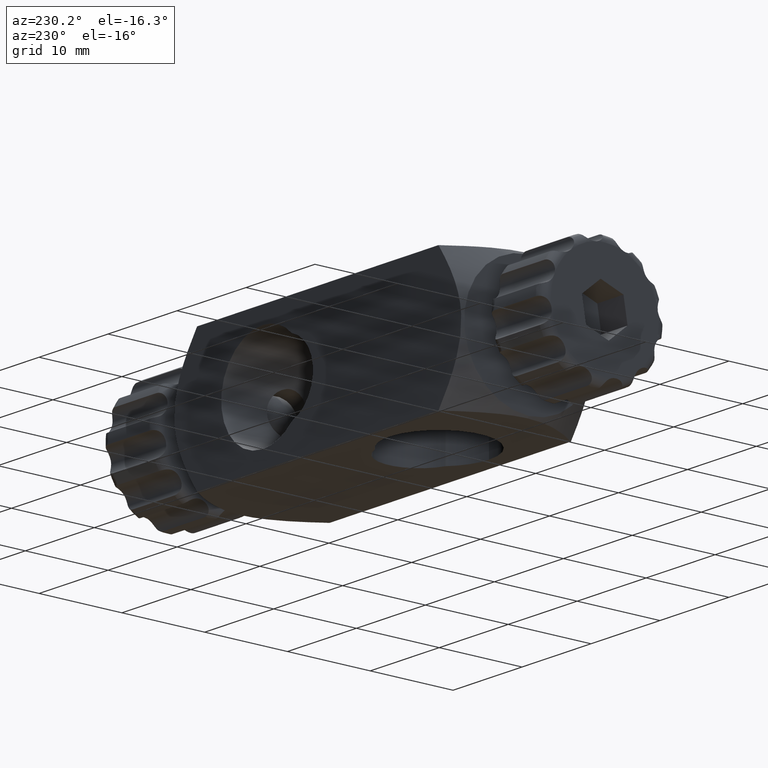
[diagram: clean part render]
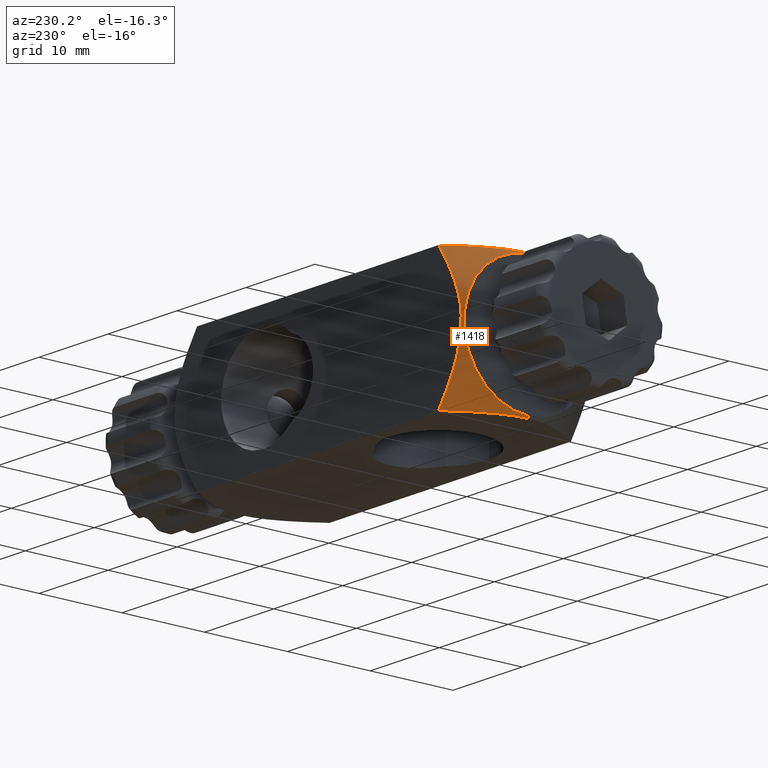
[diagram: same view with one face highlighted and labeled with its STEP entity id]
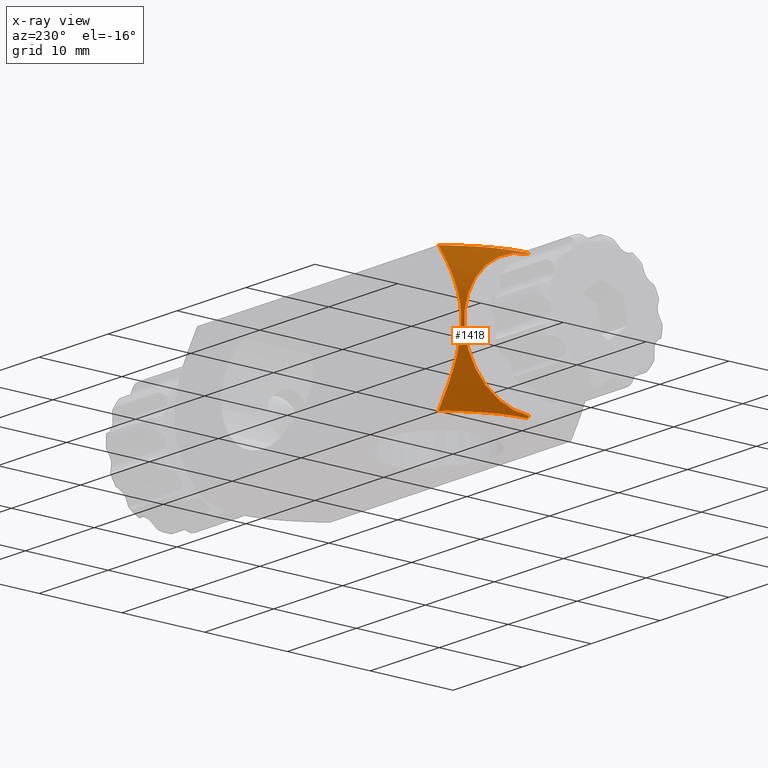
[diagram: x-ray of the same camera — body ghosted, the highlighted face saturated]
A machine part, auxiliary view. The second image highlights one B-rep face of the part: STEP entity #1418.
The next image is the same camera in x-ray: the body ghosted, the highlighted face saturated — about 0% of this face is hidden behind the body in this view.
In plain terms, the highlighted conical surface has half-angle 45 deg.
Its self-contained STEP definition (entity closure, byte-faithful):
#2 = CARTESIAN_POINT ( 'NONE',  ( -17.50000000000000000, 8.000000000000000000, -8.000000000000005329 ) ) ;
#175 = EDGE_CURVE ( 'NONE', #5871, #5452, #5161, .T. ) ;
#220 = CARTESIAN_POINT ( 'NONE',  ( -17.50000000000000000, 0.000000000000000000, -11.31370849898476294 ) ) ;
#389 = CARTESIAN_POINT ( 'NONE',  ( -21.00000000000000355, 1.172502379265107817E-15, 7.813708498984763828 ) ) ;
#416 = CARTESIAN_POINT ( 'NONE',  ( -17.92229514064221618, 8.000000000000001776, -7.402784484779539653 ) ) ;
#426 = CONICAL_SURFACE ( 'NONE', #1959, 11.31370849898476294, 0.7853981633974479459 ) ;
#475 = CARTESIAN_POINT ( 'NONE',  ( -20.42562860089000054, 7.999999999999998224, 2.544972745423847105 ) ) ;
#690 = CARTESIAN_POINT ( 'NONE',  ( -19.90721175397872500, 8.000000000000001776, 3.925766671444819611 ) ) ;
#778 = EDGE_CURVE ( 'NONE', #5512, #2603, #5330, .T. ) ;
#802 = CARTESIAN_POINT ( 'NONE',  ( -20.05440168618216745, 3.581629824737212697, -8.000000000000001776 ) ) ;
#847 = CARTESIAN_POINT ( 'NONE',  ( -19.09602088434859368, 8.000000000000001776, -5.538997386591465677 ) ) ;
#877 = CARTESIAN_POINT ( 'NONE',  ( -20.78897169824392677, 8.000000000000000000, -0.7250275231878091642 ) ) ;
#963 = CARTESIAN_POINT ( 'NONE',  ( -20.31220751485102838, 8.000000000000000000, 2.894467072397327367 ) ) ;
#1030 = CARTESIAN_POINT ( 'NONE',  ( -20.81370849898476649, 9.797174314798570497E-16, 8.000000000000000000 ) ) ;
#1147 = CARTESIAN_POINT ( 'NONE',  ( -18.32578179175611766, 6.799884536330018214, 8.000000000000001776 ) ) ;
#1180 = CARTESIAN_POINT ( 'NONE',  ( -20.05300170012582228, 8.000000000000000000, 3.585025002080002743 ) ) ;
#1252 = DIRECTION ( 'NONE',  ( 0.000000000000000000, 0.000000000000000000, -1.000000000000000000 ) ) ;
#1266 = CARTESIAN_POINT ( 'NONE',  ( -19.44030328246060435, 4.919881602706470680, -8.000000000000000000 ) ) ;
#1287 = CARTESIAN_POINT ( 'NONE',  ( -17.50000000000000000, 0.000000000000000000, 0.000000000000000000 ) ) ;
#1290 = CARTESIAN_POINT ( 'NONE',  ( -20.78791525579226018, 0.7382374763344536905, -8.000000000000001776 ) ) ;
#1293 = ORIENTED_EDGE ( 'NONE', *, *, #5323, .T. ) ;
#1383 = B_SPLINE_CURVE_WITH_KNOTS ( 'NONE', 3,
 ( #1030, #3374, #2864, #4250, #3870, #5288, #1590, #1556, #3785, #2011, #2503, #1147, #2983, #3400 ),
 .UNSPECIFIED., .F., .F.,
 ( 4, 2, 2, 2, 2, 2, 4 ),
 ( 0.01783099739773806938, 0.01892789397416532252, 0.02002479055059257912, 0.02112168712701983225, 0.02221858370344708539, 0.02441237685630159859, 0.02660617000915610833 ),
 .UNSPECIFIED. ) ;
#1400 = CARTESIAN_POINT ( 'NONE',  ( -20.81370849898476649, 9.797174314798570497E-16, 8.000000000000000000 ) ) ;
#1415 = CARTESIAN_POINT ( 'NONE',  ( -20.81342041344699823, 7.999999999999998224, 0.3728303006373130946 ) ) ;
#1418 = ADVANCED_FACE ( 'NONE', ( #5486 ), #426, .T. ) ;
#1434 = VERTEX_POINT ( 'NONE', #2425 ) ;
#1474 = VECTOR ( 'NONE', #2142, 999.9999999999998863 ) ;
#1556 = CARTESIAN_POINT ( 'NONE',  ( -20.05440168618099861, 3.581629824740159229, 8.000000000000001776 ) ) ;
#1590 = CARTESIAN_POINT ( 'NONE',  ( -20.31356114242262834, 2.890522693892557449, 8.000000000000000000 ) ) ;
#1601 = CIRCLE ( 'NONE', #4973, 7.813708498984763828 ) ;
#1654 = CARTESIAN_POINT ( 'NONE',  ( -19.08432518912336917, 7.999999999999998224, 5.558985842700168156 ) ) ;
#1697 = LINE ( 'NONE', #220, #5674 ) ;
#1711 = CARTESIAN_POINT ( 'NONE',  ( -18.32578179175527922, 6.799884536331319396, -8.000000000000000000 ) ) ;
#1784 = ORIENTED_EDGE ( 'NONE', *, *, #778, .T. ) ;
#1959 = AXIS2_PLACEMENT_3D ( 'NONE', #1287, #4055, #5901 ) ;
#1965 = ORIENTED_EDGE ( 'NONE', *, *, #175, .T. ) ;
#2011 = CARTESIAN_POINT ( 'NONE',  ( -19.44030328246087436, 4.919881602705785895, 8.000000000000000000 ) ) ;
#2142 = DIRECTION ( 'NONE',  ( 0.7071067811865479058, 8.659560562354930393E-17, 0.7071067811865472397 ) ) ;
#2224 = CARTESIAN_POINT ( 'NONE',  ( -19.45350763172081798, 8.000000000000000000, -4.894535881156409474 ) ) ;
#2319 = B_SPLINE_CURVE_WITH_KNOTS ( 'NONE', 3,
 ( #3584, #5429, #2987, #1654, #4824, #690, #1180, #963, #475, #5104, #4062, #4609, #1415, #3253, #877, #4193, #4160, #4971, #3642, #2224, #847, #2800, #416, #2 ),
 .UNSPECIFIED., .F., .F.,
 ( 4, 2, 2, 2, 2, 2, 2, 2, 2, 2, 2, 4 ),
 ( 0.03399603221189895219, 0.03618436325636750078, 0.03837269430083604937, 0.03946685982307032714, 0.04056102534530460491, 0.04165519086753887573, 0.04274935638977315350, 0.04384352191200742432, 0.04493768743424170209, 0.04712601847871025762, 0.04931434952317880621, 0.05150268056764735480 ),
 .UNSPECIFIED. ) ;
#2425 = CARTESIAN_POINT ( 'NONE',  ( -17.50000000000000355, 8.000000000000000000, 8.000000000000000000 ) ) ;
#2503 = CARTESIAN_POINT ( 'NONE',  ( -19.08536439680609220, 5.557202719139791469, 7.999999999999998224 ) ) ;
#2603 = VERTEX_POINT ( 'NONE', #1400 ) ;
#2645 = CARTESIAN_POINT ( 'NONE',  ( -20.31356114242296229, 2.890522693891473871, -8.000000000000001776 ) ) ;
#2800 = CARTESIAN_POINT ( 'NONE',  ( -18.32977993607270051, 8.000000000000000000, -6.794100204240243635 ) ) ;
#2864 = CARTESIAN_POINT ( 'NONE',  ( -20.78791525579183741, 0.7382374763385345373, 8.000000000000000000 ) ) ;
#2983 = CARTESIAN_POINT ( 'NONE',  ( -17.92073733177074857, 7.404987559213141779, 7.999999999999998224 ) ) ;
#2987 = CARTESIAN_POINT ( 'NONE',  ( -18.32520749897511436, 8.000000000000000000, 6.800740932893618584 ) ) ;
#3107 = CARTESIAN_POINT ( 'NONE',  ( -17.50000000000000000, 1.385529689976789652E-15, 11.31370849898476294 ) ) ;
#3253 = CARTESIAN_POINT ( 'NONE',  ( -20.81399172713669898, 8.000000000000000000, -0.3603628882989013960 ) ) ;
#3286 = EDGE_CURVE ( 'NONE', #2603, #1434, #1383, .T. ) ;
#3374 = CARTESIAN_POINT ( 'NONE',  ( -20.81370849898477360, 0.3668345160614235323, 8.000000000000000000 ) ) ;
#3400 = CARTESIAN_POINT ( 'NONE',  ( -17.50000000000000355, 8.000000000000000000, 8.000000000000000000 ) ) ;
#3450 = DIRECTION ( 'NONE',  ( 1.000000000000000000, -0.000000000000000000, -0.000000000000000000 ) ) ;
#3579 = CARTESIAN_POINT ( 'NONE',  ( -20.61402319011298445, 1.830865816188185002, -8.000000000000000000 ) ) ;
#3584 = CARTESIAN_POINT ( 'NONE',  ( -17.50000000000000355, 8.000000000000000000, 8.000000000000000000 ) ) ;
#3628 = EDGE_CURVE ( 'NONE', #1434, #5871, #2319, .T. ) ;
#3642 = CARTESIAN_POINT ( 'NONE',  ( -20.07322756702663824, 7.999999999999998224, -3.569191524466333476 ) ) ;
#3785 = CARTESIAN_POINT ( 'NONE',  ( -19.90858681300050748, 3.922667415172809591, 8.000000000000000000 ) ) ;
#3870 = CARTESIAN_POINT ( 'NONE',  ( -20.61402319011282458, 1.830865816188892214, 8.000000000000000000 ) ) ;
#3890 = CARTESIAN_POINT ( 'NONE',  ( -21.00000000000000355, 0.000000000000000000, -7.813708498984763828 ) ) ;
#3925 = CARTESIAN_POINT ( 'NONE',  ( -21.00000000000000355, 0.000000000000000000, 0.000000000000000000 ) ) ;
#4031 = CARTESIAN_POINT ( 'NONE',  ( -17.50000000000000000, 8.000000000000000000, -8.000000000000005329 ) ) ;
#4055 = DIRECTION ( 'NONE',  ( 1.000000000000000000, -0.000000000000000000, -0.000000000000000000 ) ) ;
#4062 = CARTESIAN_POINT ( 'NONE',  ( -20.68678732647625296, 8.000000000000001776, 1.475883045133412175 ) ) ;
#4160 = CARTESIAN_POINT ( 'NONE',  ( -20.61811455882615363, 7.999999999999998224, -1.813016830848965588 ) ) ;
#4193 = CARTESIAN_POINT ( 'NONE',  ( -20.69119034948052871, 7.999999999999996447, -1.450711989762716092 ) ) ;
#4250 = CARTESIAN_POINT ( 'NONE',  ( -20.68773215841694935, 1.470757925852254289, 8.000000000000001776 ) ) ;
#4392 = EDGE_LOOP ( 'NONE', ( #1293, #1784, #4685, #5214, #1965, #4640 ) ) ;
#4603 = CARTESIAN_POINT ( 'NONE',  ( -20.81370849898476649, -7.838516384728583804E-24, -8.000000000000001776 ) ) ;
#4609 = CARTESIAN_POINT ( 'NONE',  ( -20.78736702255115532, 8.000000000000000000, 0.7440030343107328914 ) ) ;
#4640 = ORIENTED_EDGE ( 'NONE', *, *, #5375, .F. ) ;
#4685 = ORIENTED_EDGE ( 'NONE', *, *, #3286, .T. ) ;
#4824 = CARTESIAN_POINT ( 'NONE',  ( -19.43907390183379746, 8.000000000000000000, 4.922155278878830309 ) ) ;
#4932 = CARTESIAN_POINT ( 'NONE',  ( -19.90858681300131394, 3.922667415171030569, -8.000000000000003553 ) ) ;
#4971 = CARTESIAN_POINT ( 'NONE',  ( -20.33697051623880725, 7.999999999999998224, -2.886549292154279023 ) ) ;
#4973 = AXIS2_PLACEMENT_3D ( 'NONE', #3925, #3450, #1252 ) ;
#5104 = CARTESIAN_POINT ( 'NONE',  ( -20.61293202480145581, 8.000000000000001776, 1.835684253254698417 ) ) ;
#5161 = B_SPLINE_CURVE_WITH_KNOTS ( 'NONE', 3,
 ( #4031, #5814, #1711, #5399, #1266, #4932, #802, #2645, #5873, #3579, #5424, #1290, #5635, #4603 ),
 .UNSPECIFIED., .F., .F.,
 ( 4, 2, 2, 2, 2, 2, 4 ),
 ( 0.03399603221308254014, 0.03618591376051046721, 0.03837579530793839427, 0.03947073608165235781, 0.04056567685536632134, 0.04166061762908029181, 0.04275555840279425535 ),
 .UNSPECIFIED. ) ;
#5214 = ORIENTED_EDGE ( 'NONE', *, *, #3628, .T. ) ;
#5288 = CARTESIAN_POINT ( 'NONE',  ( -20.42692407732128856, 2.540744656162061244, 8.000000000000001776 ) ) ;
#5323 = EDGE_CURVE ( 'NONE', #5366, #5512, #1601, .T. ) ;
#5330 = LINE ( 'NONE', #3107, #1474 ) ;
#5354 = DIRECTION ( 'NONE',  ( 0.7071067811865479058, 0.000000000000000000, -0.7071067811865472397 ) ) ;
#5366 = VERTEX_POINT ( 'NONE', #3890 ) ;
#5375 = EDGE_CURVE ( 'NONE', #5366, #5452, #1697, .T. ) ;
#5399 = CARTESIAN_POINT ( 'NONE',  ( -19.08536439680539232, 5.557202719141026925, -8.000000000000001776 ) ) ;
#5424 = CARTESIAN_POINT ( 'NONE',  ( -20.68773215841725133, 1.470757925850920911, -8.000000000000001776 ) ) ;
#5429 = CARTESIAN_POINT ( 'NONE',  ( -17.92043943690110552, 8.000000000000001776, 7.405408846177959248 ) ) ;
#5452 = VERTEX_POINT ( 'NONE', #5958 ) ;
#5486 = FACE_OUTER_BOUND ( 'NONE', #4392, .T. ) ;
#5512 = VERTEX_POINT ( 'NONE', #389 ) ;
#5635 = CARTESIAN_POINT ( 'NONE',  ( -20.81370849898476294, 0.3668345160602036747, -8.000000000000000000 ) ) ;
#5674 = VECTOR ( 'NONE', #5354, 999.9999999999998863 ) ;
#5814 = CARTESIAN_POINT ( 'NONE',  ( -17.92073733177018724, 7.404987559213939363, -8.000000000000000000 ) ) ;
#5871 = VERTEX_POINT ( 'NONE', #5925 ) ;
#5873 = CARTESIAN_POINT ( 'NONE',  ( -20.42692407732145199, 2.540744656161480375, -8.000000000000001776 ) ) ;
#5901 = DIRECTION ( 'NONE',  ( 0.000000000000000000, 0.000000000000000000, -1.000000000000000000 ) ) ;
#5925 = CARTESIAN_POINT ( 'NONE',  ( -17.50000000000000000, 8.000000000000000000, -8.000000000000005329 ) ) ;
#5958 = CARTESIAN_POINT ( 'NONE',  ( -20.81370849898476649, -7.838516384728583804E-24, -8.000000000000001776 ) ) ;